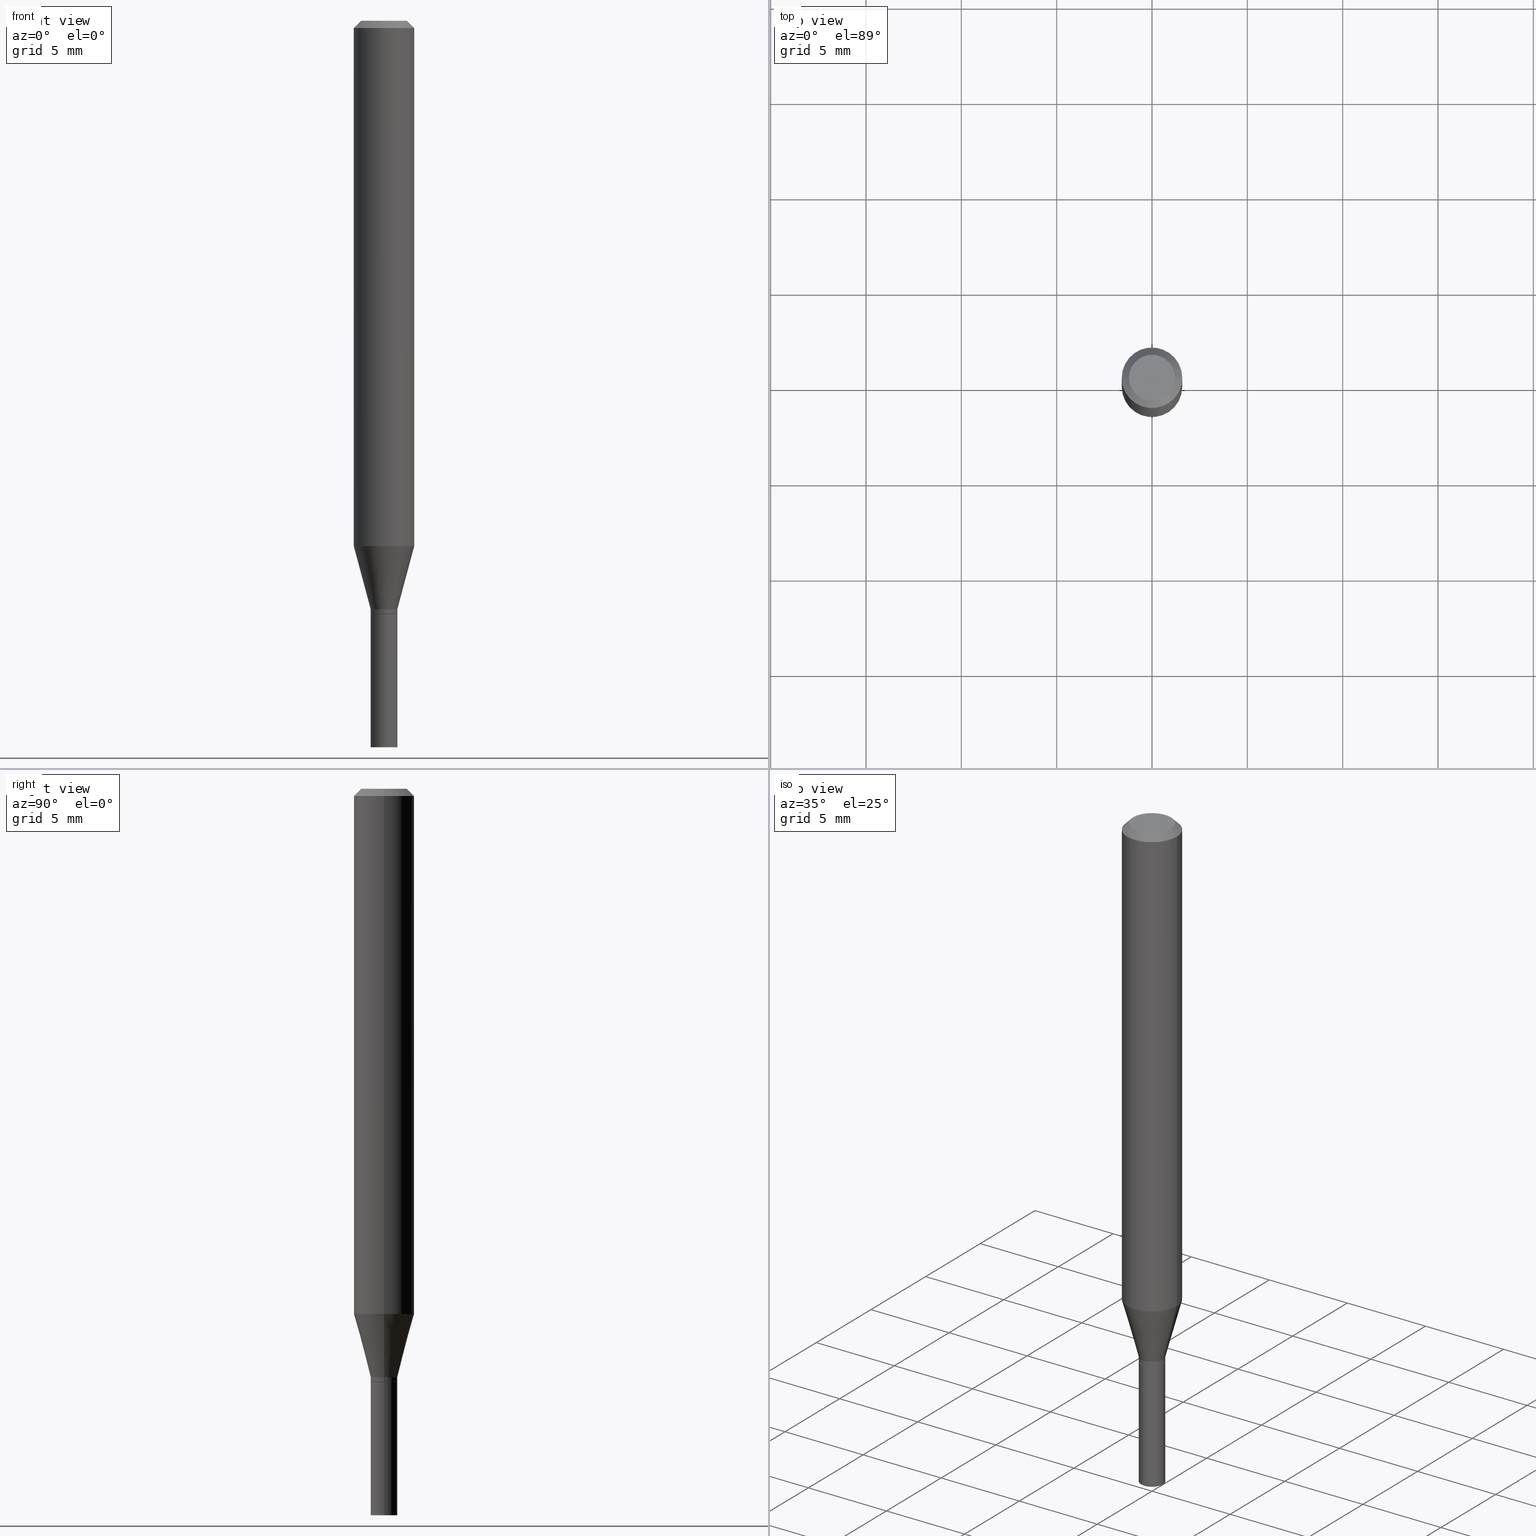
[diagram: canonical four-view strip — front | top / right | iso, engineering-drawing reading convention]
A machine part, canonical four-view strip (front | top / right | iso — engineering-drawing reading convention). The complete STEP part file that produces these views, byte-faithful:
ISO-10303-21;
HEADER;
FILE_DESCRIPTION (( 'STEP AP203' ),
    '1' );
FILE_NAME ('04193.STEP',
    '2024-03-14T17:15:49',
    ( '' ),
    ( '' ),
    'SwSTEP 2.0',
    'SolidWorks 2023',
    '' );
FILE_SCHEMA (( 'CONFIG_CONTROL_DESIGN' ));
ENDSEC;

DATA;
#1 = DIRECTION ( 'NONE',  ( -2.445468806185136597E-29, 3.491481338843145583E-15, 1.000000000000000000 ) ) ;
#2 = EDGE_CURVE ( 'NONE', #49, #306, #93, .T. ) ;
#3 = CARTESIAN_POINT ( 'NONE',  ( 2.995699287576792443E-29, -4.277064640082853349E-15, -1.225000000000000089 ) ) ;
#4 = CARTESIAN_POINT ( 'NONE',  ( 3.668203209277704895E-29, -5.237222008264718177E-15, -1.500000000000000222 ) ) ;
#5 = COORDINATED_UNIVERSAL_TIME_OFFSET ( 5, 0, .BEHIND. ) ;
#6 = AXIS2_PLACEMENT_3D ( 'NONE', #355, #25, #28 ) ;
#7 = LINE ( 'NONE', #83, #188 ) ;
#8 = AXIS2_PLACEMENT_3D ( 'NONE', #44, #403, #392 ) ;
#9 = VERTEX_POINT ( 'NONE', #379 ) ;
#10 = DATE_TIME_ROLE ( 'classification_date' ) ;
#11 = ORIENTED_EDGE ( 'NONE', *, *, #311, .T. ) ;
#12 = DIRECTION ( 'NONE',  ( -2.445468806185136877E-29, 3.491481338843145188E-15, 1.000000000000000000 ) ) ;
#13 = ORIENTED_EDGE ( 'NONE', *, *, #53, .T. ) ;
#14 = PERSON_AND_ORGANIZATION_ROLE ( 'creator' ) ;
#15 = ORIENTED_EDGE ( 'NONE', *, *, #454, .T. ) ;
#16 = EDGE_LOOP ( 'NONE', ( #395, #66, #258, #449 ) ) ;
#17 = CARTESIAN_POINT ( 'NONE',  ( -0.02750000000000006259, -4.079919647079403726E-15, -1.224499999999999922 ) ) ;
#18 = ADVANCED_FACE ( 'NONE', ( #60 ), #370, .T. ) ;
#19 = SECURITY_CLASSIFICATION_LEVEL ( 'unclassified' ) ;
#20 = MANIFOLD_SOLID_BREP ( 'Body-Move/Copy2[2]', #144 ) ;
#21 = CIRCLE ( 'NONE', #138, 0.02750000000000000014 ) ;
#22 = ORIENTED_EDGE ( 'NONE', *, *, #272, .F. ) ;
#23 = FACE_OUTER_BOUND ( 'NONE', #91, .T. ) ;
#24 = CC_DESIGN_PERSON_AND_ORGANIZATION_ASSIGNMENT ( #437, #299, ( #344 ) ) ;
#25 = DIRECTION ( 'NONE',  ( -2.445468806185136597E-29, 3.491481338843145583E-15, 1.000000000000000000 ) ) ;
#26 = EDGE_CURVE ( 'NONE', #89, #409, #230, .T. ) ;
#27 = EDGE_CURVE ( 'NONE', #332, #447, #21, .T. ) ;
#28 = DIRECTION ( 'NONE',  ( 1.000000000000000000, -6.982962677686267499E-15, 4.852736867747366768E-29 ) ) ;
#29 = DIRECTION ( 'NONE',  ( -2.445468806185136597E-29, 3.491481338843145583E-15, 1.000000000000000000 ) ) ;
#30 = CLOSED_SHELL ( 'NONE', ( #243, #241, #166, #348 ) ) ;
#31 = DIRECTION ( 'NONE',  ( 1.000000000000000000, -6.982962677686262766E-15, 0.000000000000000000 ) ) ;
#32 = EDGE_LOOP ( 'NONE', ( #375, #414, #125, #349 ) ) ;
#33 = DIRECTION ( 'NONE',  ( 1.000000000000000000, -6.982962677686262766E-15, 0.000000000000000000 ) ) ;
#34 = ORIENTED_EDGE ( 'NONE', *, *, #232, .F. ) ;
#35 = APPROVAL ( #347, 'UNSPECIFIED' ) ;
#36 = VECTOR ( 'NONE', #145, 39.37007874015748143 ) ;
#37 = CARTESIAN_POINT ( 'NONE',  ( -0.02750000000000000014, -4.561744071839757644E-15, -1.225000000000000089 ) ) ;
#38 = CARTESIAN_POINT ( 'NONE',  ( 2.994476553173699642E-29, -4.275318899413431845E-15, -1.224499999999999922 ) ) ;
#39 = VERTEX_POINT ( 'NONE', #387 ) ;
#40 = AXIS2_PLACEMENT_3D ( 'NONE', #279, #412, #59 ) ;
#41 = ORIENTED_EDGE ( 'NONE', *, *, #121, .T. ) ;
#42 =( GEOMETRIC_REPRESENTATION_CONTEXT ( 3 ) GLOBAL_UNCERTAINTY_ASSIGNED_CONTEXT ( ( #457 ) ) GLOBAL_UNIT_ASSIGNED_CONTEXT ( ( #365, #325, #189 ) ) REPRESENTATION_CONTEXT ( 'NONE', 'WORKASPACE' ) );
#43 = DIRECTION ( 'NONE',  ( -2.445468806185136597E-29, 3.491481338843145583E-15, 1.000000000000000000 ) ) ;
#44 = CARTESIAN_POINT ( 'NONE',  ( 0.000000000000000000, 0.000000000000000000, 0.000000000000000000 ) ) ;
#45 = CARTESIAN_POINT ( 'NONE',  ( 3.576687321579069994E-29, -5.368277968210015545E-15, -1.500000000000000222 ) ) ;
#46 = DATE_AND_TIME ( #231, #446 ) ;
#47 = CIRCLE ( 'NONE', #76, 0.02750000000000006259 ) ;
#48 = AXIS2_PLACEMENT_3D ( 'NONE', #38, #29, #357 ) ;
#49 = VERTEX_POINT ( 'NONE', #182 ) ;
#50 = APPROVAL ( #398, 'UNSPECIFIED' ) ;
#51 = DATE_AND_TIME ( #233, #102 ) ;
#52 = EDGE_CURVE ( 'NONE', #239, #113, #242, .T. ) ;
#53 = EDGE_CURVE ( 'NONE', #447, #332, #310, .T. ) ;
#54 = ORIENTED_EDGE ( 'NONE', *, *, #27, .F. ) ;
#55 = DIRECTION ( 'NONE',  ( 1.000000000000000000, -6.982962677686265922E-15, 4.876176775795935793E-29 ) ) ;
#56 = ORIENTED_EDGE ( 'NONE', *, *, #57, .T. ) ;
#57 = EDGE_CURVE ( 'NONE', #309, #97, #224, .T. ) ;
#58 = ORIENTED_EDGE ( 'NONE', *, *, #121, .F. ) ;
#59 = DIRECTION ( 'NONE',  ( -1.000000000000000000, 6.982962677686266711E-15, 0.000000000000000000 ) ) ;
#60 = FACE_OUTER_BOUND ( 'NONE', #220, .T. ) ;
#61 = EDGE_CURVE ( 'NONE', #171, #340, #219, .T. ) ;
#62 = CONICAL_SURFACE ( 'NONE', #67, 0.06250000000000000000, 0.7853981633974636001 ) ;
#63 = PLANE ( 'NONE',  #193 ) ;
#64 = CARTESIAN_POINT ( 'NONE',  ( -0.06250000000000000000, -1.475140062909251703E-15, -0.01499999999999999944 ) ) ;
#65 = CARTESIAN_POINT ( 'NONE',  ( 2.995699287576792443E-29, -4.277064640082853349E-15, -1.225000000000000089 ) ) ;
#66 = ORIENTED_EDGE ( 'NONE', *, *, #232, .T. ) ;
#67 = AXIS2_PLACEMENT_3D ( 'NONE', #154, #333, #293 ) ;
#68 = CARTESIAN_POINT ( 'NONE',  ( 0.06250000000000000000, -4.222521492791372833E-15, -1.084378221735089909 ) ) ;
#69 = APPROVAL ( #128, 'UNSPECIFIED' ) ;
#70 = DIRECTION ( 'NONE',  ( 1.000000000000000000, -6.982962677686280121E-15, 0.000000000000000000 ) ) ;
#71 = CIRCLE ( 'NONE', #319, 0.06250000000000000000 ) ;
#72 = DIRECTION ( 'NONE',  ( 1.000000000000000000, -6.982962677686262766E-15, 0.000000000000000000 ) ) ;
#73 = PERSON_AND_ORGANIZATION_ROLE ( 'creator' ) ;
#74 = VERTEX_POINT ( 'NONE', #64 ) ;
#75 = AXIS2_PLACEMENT_3D ( 'NONE', #297, #148, #111 ) ;
#76 = AXIS2_PLACEMENT_3D ( 'NONE', #435, #77, #157 ) ;
#77 = DIRECTION ( 'NONE',  ( -2.445468806185136597E-29, 3.491481338843145583E-15, 1.000000000000000000 ) ) ;
#78 = CC_DESIGN_DATE_AND_TIME_ASSIGNMENT ( #413, #10, ( #421 ) ) ;
#79 = CARTESIAN_POINT ( 'NONE',  ( 0.000000000000000000, 0.000000000000000000, 0.000000000000000000 ) ) ;
#80 = MECHANICAL_CONTEXT ( 'NONE', #213, 'mechanical' ) ;
#81 = FACE_OUTER_BOUND ( 'NONE', #130, .T. ) ;
#82 = VECTOR ( 'NONE', #315, 39.37007874015748143 ) ;
#83 = CARTESIAN_POINT ( 'NONE',  ( -0.02750000000000000014, 1.953992523340275521E-16, -1.352707149820099181E-30 ) ) ;
#84 = CIRCLE ( 'NONE', #445, 0.02699999999999999969 ) ;
#85 = CC_DESIGN_APPROVAL ( #35, ( #344 ) ) ;
#86 = ORIENTED_EDGE ( 'NONE', *, *, #53, .F. ) ;
#87 = CARTESIAN_POINT ( 'NONE',  ( 2.971244599514940898E-29, -4.242149826694421699E-15, -1.215000000000000080 ) ) ;
#88 = APPROVAL_DATE_TIME ( #201, #35 ) ;
#89 = VERTEX_POINT ( 'NONE', #37 ) ;
#90 = PERSON_AND_ORGANIZATION_ROLE ( 'classification_officer' ) ;
#91 = EDGE_LOOP ( 'NONE', ( #237, #155, #11, #162 ) ) ;
#92 = AXIS2_PLACEMENT_3D ( 'NONE', #388, #137, #289 ) ;
#93 = LINE ( 'NONE', #94, #425 ) ;
#94 = CARTESIAN_POINT ( 'NONE',  ( 0.06250000000000000000, -4.811533449433679005E-16, -0.01499999999999999944 ) ) ;
#95 = AXIS2_PLACEMENT_3D ( 'NONE', #140, #185, #221 ) ;
#96 = DIRECTION ( 'NONE',  ( -2.445468806185136597E-29, 3.491481338843145583E-15, 1.000000000000000000 ) ) ;
#97 = VERTEX_POINT ( 'NONE', #108 ) ;
#98 = ADVANCED_BREP_SHAPE_REPRESENTATION ( '04193', ( #179, #20, #75 ), #42 ) ;
#99 = DIRECTION ( 'NONE',  ( -2.445468806185136597E-29, 3.491481338843145583E-15, 1.000000000000000000 ) ) ;
#100 = DIRECTION ( 'NONE',  ( 1.000000000000000000, -6.982962677686279332E-15, 0.000000000000000000 ) ) ;
#101 = ORIENTED_EDGE ( 'NONE', *, *, #336, .F. ) ;
#102 = LOCAL_TIME ( 13, 15, 49.00000000000000000, #371 ) ;
#103 = CYLINDRICAL_SURFACE ( 'NONE', #282, 0.02750000000000006606 ) ;
#104 = ADVANCED_FACE ( 'NONE', ( #385 ), #107, .T. ) ;
#105 = CIRCLE ( 'NONE', #314, 0.06250000000000000000 ) ;
#106 = DIRECTION ( 'NONE',  ( -1.000000000000000000, 6.982962677686265922E-15, -4.876176775795935793E-29 ) ) ;
#107 = CONICAL_SURFACE ( 'NONE', #335, 0.02699999999999999969, 0.7853981633974739252 ) ;
#108 = CARTESIAN_POINT ( 'NONE',  ( -0.02750000000000006953, -3.694373844973156064E-15, -1.215000000000000080 ) ) ;
#109 = FACE_OUTER_BOUND ( 'NONE', #252, .T. ) ;
#110 = PLANE ( 'NONE',  #417 ) ;
#111 = DIRECTION ( 'NONE',  ( 1.000000000000000000, 0.000000000000000000, 0.000000000000000000 ) ) ;
#112 = CARTESIAN_POINT ( 'NONE',  ( -0.02750000000000006606, 1.953992523340280205E-16, -1.352707149820102334E-30 ) ) ;
#113 = VERTEX_POINT ( 'NONE', #68 ) ;
#114 = PERSON_AND_ORGANIZATION ( #373, #207 ) ;
#115 = DIRECTION ( 'NONE',  ( 1.000000000000000000, -6.982962677686279332E-15, 0.000000000000000000 ) ) ;
#116 = CARTESIAN_POINT ( 'NONE',  ( -0.06250000000000000000, -3.341997115585918942E-15, -1.084378221735089909 ) ) ;
#117 = APPLICATION_CONTEXT ( 'configuration controlled 3d designs of mechanical parts and assemblies' ) ;
#118 = CARTESIAN_POINT ( 'NONE',  ( 0.000000000000000000, 0.000000000000000000, 0.000000000000000000 ) ) ;
#119 = EDGE_CURVE ( 'NONE', #332, #409, #217, .T. ) ;
#120 = PERSON_AND_ORGANIZATION ( #373, #207 ) ;
#121 = EDGE_CURVE ( 'NONE', #306, #74, #274, .T. ) ;
#122 = CYLINDRICAL_SURFACE ( 'NONE', #8, 0.06250000000000000000 ) ;
#123 = PERSON_AND_ORGANIZATION ( #373, #207 ) ;
#124 = CIRCLE ( 'NONE', #380, 0.04749999999999999362 ) ;
#125 = ORIENTED_EDGE ( 'NONE', *, *, #454, .F. ) ;
#126 = ORIENTED_EDGE ( 'NONE', *, *, #26, .F. ) ;
#127 = DIRECTION ( 'NONE',  ( 0.2588190451025214611, 1.565188264969620982E-15, 0.9659258262890679791 ) ) ;
#128 = APPROVAL_STATUS ( 'not_yet_approved' ) ;
#129 = EDGE_CURVE ( 'NONE', #309, #340, #167, .T. ) ;
#130 = EDGE_LOOP ( 'NONE', ( #256, #337, #41, #328 ) ) ;
#131 = CARTESIAN_POINT ( 'NONE',  ( 0.02750000000000006953, -4.434181300330794981E-15, -1.215000000000000080 ) ) ;
#132 = ORIENTED_EDGE ( 'NONE', *, *, #158, .F. ) ;
#133 = CC_DESIGN_DATE_AND_TIME_ASSIGNMENT ( #394, #330, ( #270 ) ) ;
#134 = ORIENTED_EDGE ( 'NONE', *, *, #287, .T. ) ;
#135 = DIRECTION ( 'NONE',  ( -0.7071067811865583419, 2.468850131082370262E-15, -0.7071067811865366926 ) ) ;
#136 = SHAPE_DEFINITION_REPRESENTATION ( #415, #98 ) ;
#137 = DIRECTION ( 'NONE',  ( -2.445468806185136597E-29, 3.491481338843145583E-15, 1.000000000000000000 ) ) ;
#138 = AXIS2_PLACEMENT_3D ( 'NONE', #4, #461, #149 ) ;
#139 = DIRECTION ( 'NONE',  ( 1.000000000000000000, -6.982962677686266711E-15, 4.876176775795935793E-29 ) ) ;
#140 = CARTESIAN_POINT ( 'NONE',  ( 3.668203209277704895E-29, -5.237222008264718177E-15, -1.500000000000000222 ) ) ;
#141 = ADVANCED_FACE ( 'NONE', ( #181 ), #103, .T. ) ;
#142 = ADVANCED_FACE ( 'NONE', ( #283 ), #396, .T. ) ;
#143 = CARTESIAN_POINT ( 'NONE',  ( 0.02750000000000000014, -1.920314736363723444E-16, 1.340948613343882413E-30 ) ) ;
#144 = CLOSED_SHELL ( 'NONE', ( #141, #142, #209, #458, #18, #281, #183, #317, #176, #275, #104, #360 ) ) ;
#145 = DIRECTION ( 'NONE',  ( -0.7071067811865656694, 7.493145998870420424E-15, 0.7071067811865294761 ) ) ;
#146 = PRODUCT_RELATED_PRODUCT_CATEGORY ( 'detail', '', ( #250 ) ) ;
#147 = DIRECTION ( 'NONE',  ( -2.445468806185136597E-29, 3.491481338843145583E-15, 1.000000000000000000 ) ) ;
#148 = DIRECTION ( 'NONE',  ( 0.000000000000000000, 0.000000000000000000, 1.000000000000000000 ) ) ;
#149 = DIRECTION ( 'NONE',  ( 1.000000000000000000, -6.982962677686279332E-15, 0.000000000000000000 ) ) ;
#150 = DIRECTION ( 'NONE',  ( -2.445468806185136877E-29, 3.491481338843145188E-15, 1.000000000000000000 ) ) ;
#151 = VECTOR ( 'NONE', #135, 39.37007874015748143 ) ;
#152 = CC_DESIGN_APPROVAL ( #50, ( #270 ) ) ;
#153 = VECTOR ( 'NONE', #127, 39.37007874015748143 ) ;
#154 = CARTESIAN_POINT ( 'NONE',  ( 3.668203209277705088E-31, -5.237222008264718399E-17, -0.01499999999999999944 ) ) ;
#155 = ORIENTED_EDGE ( 'NONE', *, *, #386, .F. ) ;
#156 = FACE_OUTER_BOUND ( 'NONE', #345, .T. ) ;
#157 = DIRECTION ( 'NONE',  ( 1.000000000000000000, -6.982962677686263555E-15, 0.000000000000000000 ) ) ;
#158 = EDGE_CURVE ( 'NONE', #113, #239, #105, .T. ) ;
#159 = APPLICATION_PROTOCOL_DEFINITION ( 'international standard', 'config_control_design', 1994, #117 ) ;
#160 = APPROVAL_PERSON_ORGANIZATION ( #123, #69, #453 ) ;
#161 = CONICAL_SURFACE ( 'NONE', #292, 0.02750000000000006953, 0.2617993877991501850 ) ;
#162 = ORIENTED_EDGE ( 'NONE', *, *, #433, .T. ) ;
#163 = CARTESIAN_POINT ( 'NONE',  ( 2.995699287576792443E-29, -4.277064640082853349E-15, -1.225000000000000089 ) ) ;
#164 = EDGE_LOOP ( 'NONE', ( #271, #208 ) ) ;
#165 = DIRECTION ( 'NONE',  ( -2.445468806185136877E-29, 3.491481338843145188E-15, 1.000000000000000000 ) ) ;
#166 = ADVANCED_FACE ( 'NONE', ( #284 ), #422, .T. ) ;
#167 = CIRCLE ( 'NONE', #48, 0.02750000000000006259 ) ;
#168 = EDGE_CURVE ( 'NONE', #409, #89, #359, .T. ) ;
#169 = ORIENTED_EDGE ( 'NONE', *, *, #339, .F. ) ;
#170 = CARTESIAN_POINT ( 'NONE',  ( 2.995699287576792443E-29, -4.277064640082853349E-15, -1.225000000000000089 ) ) ;
#171 = VERTEX_POINT ( 'NONE', #290 ) ;
#172 = ORIENTED_EDGE ( 'NONE', *, *, #272, .T. ) ;
#173 = LINE ( 'NONE', #452, #151 ) ;
#174 = PERSON_AND_ORGANIZATION ( #373, #207 ) ;
#175 = EDGE_LOOP ( 'NONE', ( #302, #343, #58, #22 ) ) ;
#176 = ADVANCED_FACE ( 'NONE', ( #427 ), #110, .F. ) ;
#177 = CARTESIAN_POINT ( 'NONE',  ( 2.971244599514940898E-29, -4.242149826694421699E-15, -1.215000000000000080 ) ) ;
#178 = CARTESIAN_POINT ( 'NONE',  ( 0.02750000000000000014, -4.469096113719225841E-15, -1.225000000000000089 ) ) ;
#179 = MANIFOLD_SOLID_BREP ( 'Body-Move/Copy2[1]', #30 ) ;
#180 = LOCAL_TIME ( 13, 15, 49.00000000000000000, #5 ) ;
#181 = FACE_OUTER_BOUND ( 'NONE', #255, .T. ) ;
#182 = CARTESIAN_POINT ( 'NONE',  ( 0.04749999999999999362, -4.035134999187586019E-16, -4.564927558880262878E-16 ) ) ;
#183 = ADVANCED_FACE ( 'NONE', ( #276 ), #248, .T. ) ;
#184 = CARTESIAN_POINT ( 'NONE',  ( 0.02750000000000006259, -4.467350373049805126E-15, -1.224499999999999922 ) ) ;
#185 = DIRECTION ( 'NONE',  ( -2.445468806185136597E-29, 3.491481338843145583E-15, 1.000000000000000000 ) ) ;
#186 = ORIENTED_EDGE ( 'NONE', *, *, #129, .F. ) ;
#187 = DIRECTION ( 'NONE',  ( -2.445468806185136597E-29, 3.491481338843145583E-15, 1.000000000000000000 ) ) ;
#188 = VECTOR ( 'NONE', #12, 39.37007874015748143 ) ;
#189 =( NAMED_UNIT ( * ) SI_UNIT ( $, .STERADIAN. ) SOLID_ANGLE_UNIT ( ) );
#190 = DIRECTION ( 'NONE',  ( -2.445468806185136597E-29, 3.491481338843145583E-15, 1.000000000000000000 ) ) ;
#191 = APPROVAL_DATE_TIME ( #46, #50 ) ;
#192 = PERSON_AND_ORGANIZATION_ROLE ( 'design_owner' ) ;
#193 = AXIS2_PLACEMENT_3D ( 'NONE', #416, #466, #106 ) ;
#194 = LOCAL_TIME ( 13, 15, 49.00000000000000000, #206 ) ;
#195 = ORIENTED_EDGE ( 'NONE', *, *, #260, .T. ) ;
#196 = DIRECTION ( 'NONE',  ( 1.000000000000000000, -6.982962677686267499E-15, 4.852736867747366768E-29 ) ) ;
#197 = APPROVAL_ROLE ( '' ) ;
#198 = LINE ( 'NONE', #298, #381 ) ;
#199 = AXIS2_PLACEMENT_3D ( 'NONE', #118, #99, #200 ) ;
#200 = DIRECTION ( 'NONE',  ( 1.000000000000000000, -6.982962677686266711E-15, 4.876176775795935793E-29 ) ) ;
#201 = DATE_AND_TIME ( #338, #194 ) ;
#202 = CC_DESIGN_PERSON_AND_ORGANIZATION_ASSIGNMENT ( #114, #192, ( #250 ) ) ;
#203 = CALENDAR_DATE ( 2024, 14, 3 ) ;
#204 = ORIENTED_EDGE ( 'NONE', *, *, #61, .T. ) ;
#205 = LINE ( 'NONE', #131, #153 ) ;
#206 = COORDINATED_UNIVERSAL_TIME_OFFSET ( 5, 0, .BEHIND. ) ;
#207 = ORGANIZATION ( 'UNSPECIFIED', 'UNSPECIFIED', '' ) ;
#208 = ORIENTED_EDGE ( 'NONE', *, *, #215, .F. ) ;
#209 = ADVANCED_FACE ( 'NONE', ( #81 ), #62, .T. ) ;
#210 = VERTEX_POINT ( 'NONE', #431 ) ;
#211 = CARTESIAN_POINT ( 'NONE',  ( 0.02750000000000000014, -5.429253481901091458E-15, -1.500000000000000222 ) ) ;
#212 = CARTESIAN_POINT ( 'NONE',  ( 2.971244599514940898E-29, -4.242149826694421699E-15, -1.215000000000000080 ) ) ;
#213 = APPLICATION_CONTEXT ( 'configuration controlled 3d designs of mechanical parts and assemblies' ) ;
#214 = AXIS2_PLACEMENT_3D ( 'NONE', #251, #363, #366 ) ;
#215 = EDGE_CURVE ( 'NONE', #39, #171, #324, .T. ) ;
#216 = CIRCLE ( 'NONE', #263, 0.02750000000000006953 ) ;
#217 = LINE ( 'NONE', #143, #432 ) ;
#218 = EDGE_CURVE ( 'NONE', #239, #74, #397, .T. ) ;
#219 = LINE ( 'NONE', #383, #351 ) ;
#220 = EDGE_LOOP ( 'NONE', ( #268, #451, #132, #321 ) ) ;
#221 = DIRECTION ( 'NONE',  ( 1.000000000000000000, -6.982962677686279332E-15, 0.000000000000000000 ) ) ;
#222 = CC_DESIGN_PERSON_AND_ORGANIZATION_ASSIGNMENT ( #120, #73, ( #270 ) ) ;
#223 = ORIENTED_EDGE ( 'NONE', *, *, #307, .F. ) ;
#224 = LINE ( 'NONE', #112, #82 ) ;
#225 = ORIENTED_EDGE ( 'NONE', *, *, #386, .T. ) ;
#226 = LENGTH_MEASURE_WITH_UNIT ( LENGTH_MEASURE( 0.02539999999999999897 ), #331 );
#227 = DIRECTION ( 'NONE',  ( 2.438088387897960049E-29, -3.491481338843145188E-15, -1.000000000000000000 ) ) ;
#228 = EDGE_CURVE ( 'NONE', #49, #210, #124, .T. ) ;
#229 = DIRECTION ( 'NONE',  ( -2.445468806185136597E-29, 3.491481338843145583E-15, 1.000000000000000000 ) ) ;
#230 = CIRCLE ( 'NONE', #257, 0.02750000000000000014 ) ;
#231 = CALENDAR_DATE ( 2024, 14, 3 ) ;
#232 = EDGE_CURVE ( 'NONE', #447, #89, #7, .T. ) ;
#233 = CALENDAR_DATE ( 2024, 14, 3 ) ;
#234 = PLANE ( 'NONE',  #455 ) ;
#235 = ORIENTED_EDGE ( 'NONE', *, *, #57, .F. ) ;
#236 = DIRECTION ( 'NONE',  ( 1.000000000000000000, -6.982962677686280121E-15, 0.000000000000000000 ) ) ;
#237 = ORIENTED_EDGE ( 'NONE', *, *, #2, .F. ) ;
#238 = ORIENTED_EDGE ( 'NONE', *, *, #228, .T. ) ;
#239 = VERTEX_POINT ( 'NONE', #116 ) ;
#240 = DIRECTION ( 'NONE',  ( 0.7071067811865583419, -7.319954787623292333E-15, -0.7071067811865366926 ) ) ;
#241 = ADVANCED_FACE ( 'NONE', ( #156 ), #265, .F. ) ;
#242 = CIRCLE ( 'NONE', #438, 0.06250000000000000000 ) ;
#243 = ADVANCED_FACE ( 'NONE', ( #334 ), #262, .T. ) ;
#244 = DIRECTION ( 'NONE',  ( 1.000000000000000000, -6.982962677686266711E-15, 0.000000000000000000 ) ) ;
#245 = CIRCLE ( 'NONE', #354, 0.02750000000000006953 ) ;
#246 = DIRECTION ( 'NONE',  ( -2.445468806185136597E-29, 3.491481338843145583E-15, 1.000000000000000000 ) ) ;
#247 = ORIENTED_EDGE ( 'NONE', *, *, #372, .F. ) ;
#248 = CYLINDRICAL_SURFACE ( 'NONE', #199, 0.06250000000000000000 ) ;
#249 = CYLINDRICAL_SURFACE ( 'NONE', #92, 0.02750000000000006606 ) ;
#250 = PRODUCT ( '04193', '04193', '', ( #80 ) ) ;
#251 = CARTESIAN_POINT ( 'NONE',  ( 0.000000000000000000, 0.000000000000000000, 0.000000000000000000 ) ) ;
#252 = EDGE_LOOP ( 'NONE', ( #235, #411, #195, #101 ) ) ;
#253 = LINE ( 'NONE', #390, #420 ) ;
#254 = CARTESIAN_POINT ( 'NONE',  ( 3.316907271900976096E-16, 0.04749999999999999362, -3.940917415390638222E-16 ) ) ;
#255 = EDGE_LOOP ( 'NONE', ( #15, #56, #223, #273 ) ) ;
#256 = ORIENTED_EDGE ( 'NONE', *, *, #228, .F. ) ;
#257 = AXIS2_PLACEMENT_3D ( 'NONE', #326, #246, #31 ) ;
#258 = ORIENTED_EDGE ( 'NONE', *, *, #168, .F. ) ;
#259 = DIRECTION ( 'NONE',  ( -2.445468806185136597E-29, 3.491481338843145583E-15, 1.000000000000000000 ) ) ;
#260 = EDGE_CURVE ( 'NONE', #340, #9, #198, .T. ) ;
#261 = FACE_OUTER_BOUND ( 'NONE', #175, .T. ) ;
#262 = CYLINDRICAL_SURFACE ( 'NONE', #301, 0.02750000000000000014 ) ;
#263 = AXIS2_PLACEMENT_3D ( 'NONE', #423, #459, #322 ) ;
#264 = APPLICATION_PROTOCOL_DEFINITION ( 'international standard', 'config_control_design', 1994, #213 ) ;
#265 = PLANE ( 'NONE',  #288 ) ;
#266 = PERSON_AND_ORGANIZATION ( #373, #207 ) ;
#267 = PERSON_AND_ORGANIZATION ( #373, #207 ) ;
#268 = ORIENTED_EDGE ( 'NONE', *, *, #307, .T. ) ;
#269 = CARTESIAN_POINT ( 'NONE',  ( 2.995699287576792443E-29, -4.277064640082853349E-15, -1.225000000000000089 ) ) ;
#270 = PRODUCT_DEFINITION ( 'UNKNOWN', '', #344, #376 ) ;
#271 = ORIENTED_EDGE ( 'NONE', *, *, #305, .F. ) ;
#272 = EDGE_CURVE ( 'NONE', #113, #306, #327, .T. ) ;
#273 = ORIENTED_EDGE ( 'NONE', *, *, #260, .F. ) ;
#274 = CIRCLE ( 'NONE', #300, 0.06250000000000000000 ) ;
#275 = ADVANCED_FACE ( 'NONE', ( #440 ), #234, .F. ) ;
#276 = FACE_OUTER_BOUND ( 'NONE', #406, .T. ) ;
#277 = VECTOR ( 'NONE', #165, 39.37007874015748143 ) ;
#278 = ORIENTED_EDGE ( 'NONE', *, *, #218, .F. ) ;
#279 = CARTESIAN_POINT ( 'NONE',  ( 3.668203209277705088E-31, -5.237222008264718399E-17, -0.01499999999999999944 ) ) ;
#280 = ORIENTED_EDGE ( 'NONE', *, *, #52, .T. ) ;
#281 = ADVANCED_FACE ( 'NONE', ( #443 ), #161, .T. ) ;
#282 = AXIS2_PLACEMENT_3D ( 'NONE', #391, #187, #139 ) ;
#283 = FACE_OUTER_BOUND ( 'NONE', #32, .T. ) ;
#284 = FACE_OUTER_BOUND ( 'NONE', #439, .T. ) ;
#285 = LINE ( 'NONE', #426, #36 ) ;
#286 = DIRECTION ( 'NONE',  ( -2.445468806185136597E-29, 3.491481338843145583E-15, 1.000000000000000000 ) ) ;
#287 = EDGE_CURVE ( 'NONE', #9, #113, #205, .T. ) ;
#288 = AXIS2_PLACEMENT_3D ( 'NONE', #45, #296, #404 ) ;
#289 = DIRECTION ( 'NONE',  ( 1.000000000000000000, -6.982962677686266711E-15, 4.876176775795935793E-29 ) ) ;
#290 = CARTESIAN_POINT ( 'NONE',  ( 0.02699999999999999969, -4.465604632380382834E-15, -1.225000000000000089 ) ) ;
#291 = CARTESIAN_POINT ( 'NONE',  ( 2.651813115359671942E-29, -3.786086325435981164E-15, -1.084378221735089909 ) ) ;
#292 = AXIS2_PLACEMENT_3D ( 'NONE', #177, #456, #378 ) ;
#293 = DIRECTION ( 'NONE',  ( -1.000000000000000000, 6.982962677686266711E-15, 0.000000000000000000 ) ) ;
#294 = AXIS2_PLACEMENT_3D ( 'NONE', #424, #462, #100 ) ;
#295 = ORIENTED_EDGE ( 'NONE', *, *, #336, .T. ) ;
#296 = DIRECTION ( 'NONE',  ( -2.438088387897960049E-29, 3.491481338843145188E-15, 1.000000000000000000 ) ) ;
#297 = CARTESIAN_POINT ( 'NONE',  ( 0.000000000000000000, 0.000000000000000000, 0.000000000000000000 ) ) ;
#298 = CARTESIAN_POINT ( 'NONE',  ( 0.02750000000000006606, -1.920314736363727881E-16, 1.340948613343885566E-30 ) ) ;
#299 = PERSON_AND_ORGANIZATION_ROLE ( 'design_supplier' ) ;
#300 = AXIS2_PLACEMENT_3D ( 'NONE', #356, #389, #361 ) ;
#301 = AXIS2_PLACEMENT_3D ( 'NONE', #79, #229, #369 ) ;
#302 = ORIENTED_EDGE ( 'NONE', *, *, #158, .T. ) ;
#303 = DIRECTION ( 'NONE',  ( -2.438088387897960049E-29, 3.491481338843145188E-15, 1.000000000000000000 ) ) ;
#304 = ORIENTED_EDGE ( 'NONE', *, *, #52, .F. ) ;
#305 = EDGE_CURVE ( 'NONE', #171, #39, #84, .T. ) ;
#306 = VERTEX_POINT ( 'NONE', #448 ) ;
#307 = EDGE_CURVE ( 'NONE', #9, #97, #245, .T. ) ;
#308 = ORIENTED_EDGE ( 'NONE', *, *, #433, .F. ) ;
#309 = VERTEX_POINT ( 'NONE', #17 ) ;
#310 = CIRCLE ( 'NONE', #95, 0.02750000000000000014 ) ;
#311 = EDGE_CURVE ( 'NONE', #210, #74, #173, .T. ) ;
#312 = CARTESIAN_POINT ( 'NONE',  ( 3.668203209277705088E-31, -5.237222008264718399E-17, -0.01499999999999999944 ) ) ;
#313 = DIRECTION ( 'NONE',  ( -2.445468806185136877E-29, 3.491481338843145188E-15, 1.000000000000000000 ) ) ;
#314 = AXIS2_PLACEMENT_3D ( 'NONE', #323, #1, #33 ) ;
#315 = DIRECTION ( 'NONE',  ( -2.445468806185136877E-29, 3.491481338843145188E-15, 1.000000000000000000 ) ) ;
#316 = ORIENTED_EDGE ( 'NONE', *, *, #26, .T. ) ;
#317 = ADVANCED_FACE ( 'NONE', ( #23 ), #329, .T. ) ;
#318 = APPROVAL_PERSON_ORGANIZATION ( #266, #35, #444 ) ;
#319 = AXIS2_PLACEMENT_3D ( 'NONE', #312, #96, #244 ) ;
#320 = DIRECTION ( 'NONE',  ( 0.7071067811865656694, -2.468850131082446387E-15, 0.7071067811865294761 ) ) ;
#321 = ORIENTED_EDGE ( 'NONE', *, *, #287, .F. ) ;
#322 = DIRECTION ( 'NONE',  ( 1.000000000000000000, -6.982962677686280121E-15, 0.000000000000000000 ) ) ;
#323 = CARTESIAN_POINT ( 'NONE',  ( 2.651813115359671942E-29, -3.786086325435981164E-15, -1.084378221735089909 ) ) ;
#324 = CIRCLE ( 'NONE', #408, 0.02699999999999999969 ) ;
#325 =( NAMED_UNIT ( * ) PLANE_ANGLE_UNIT ( ) SI_UNIT ( $, .RADIAN. ) );
#326 = CARTESIAN_POINT ( 'NONE',  ( 2.995699287576792443E-29, -4.277064640082853349E-15, -1.225000000000000089 ) ) ;
#327 = LINE ( 'NONE', #346, #277 ) ;
#328 = ORIENTED_EDGE ( 'NONE', *, *, #311, .F. ) ;
#329 = CONICAL_SURFACE ( 'NONE', #40, 0.06250000000000000000, 0.7853981633974636001 ) ;
#330 = DATE_TIME_ROLE ( 'creation_date' ) ;
#331 =( LENGTH_UNIT ( ) NAMED_UNIT ( * ) SI_UNIT ( $, .METRE. ) );
#332 = VERTEX_POINT ( 'NONE', #211 ) ;
#333 = DIRECTION ( 'NONE',  ( 2.445468806185136597E-29, -3.491481338843145583E-15, -1.000000000000000000 ) ) ;
#334 = FACE_OUTER_BOUND ( 'NONE', #16, .T. ) ;
#335 = AXIS2_PLACEMENT_3D ( 'NONE', #65, #190, #419 ) ;
#336 = EDGE_CURVE ( 'NONE', #97, #9, #216, .T. ) ;
#337 = ORIENTED_EDGE ( 'NONE', *, *, #2, .T. ) ;
#338 = CALENDAR_DATE ( 2024, 14, 3 ) ;
#339 = EDGE_CURVE ( 'NONE', #39, #309, #285, .T. ) ;
#340 = VERTEX_POINT ( 'NONE', #184 ) ;
#341 = DIRECTION ( 'NONE',  ( -2.445468806185136597E-29, 3.491481338843145583E-15, 1.000000000000000000 ) ) ;
#342 = APPROVAL_DATE_TIME ( #51, #69 ) ;
#343 = ORIENTED_EDGE ( 'NONE', *, *, #218, .T. ) ;
#344 = PRODUCT_DEFINITION_FORMATION_WITH_SPECIFIED_SOURCE ( 'ANY', '', #250, .NOT_KNOWN. ) ;
#345 = EDGE_LOOP ( 'NONE', ( #54, #86 ) ) ;
#346 = CARTESIAN_POINT ( 'NONE',  ( 0.06250000000000000000, -4.364351673553916694E-16, 3.047610484872459871E-30 ) ) ;
#347 = APPROVAL_STATUS ( 'not_yet_approved' ) ;
#348 = ADVANCED_FACE ( 'NONE', ( #382 ), #63, .F. ) ;
#349 = ORIENTED_EDGE ( 'NONE', *, *, #61, .F. ) ;
#350 = DIRECTION ( 'NONE',  ( -2.445468806185136597E-29, 3.491481338843145583E-15, 1.000000000000000000 ) ) ;
#351 = VECTOR ( 'NONE', #320, 39.37007874015748143 ) ;
#352 = DIRECTION ( 'NONE',  ( -2.445468806185136597E-29, 3.491481338843145583E-15, 1.000000000000000000 ) ) ;
#353 = DIRECTION ( 'NONE',  ( -0.2588190451025214611, 5.211531920934550253E-15, 0.9659258262890679791 ) ) ;
#354 = AXIS2_PLACEMENT_3D ( 'NONE', #87, #350, #236 ) ;
#355 = CARTESIAN_POINT ( 'NONE',  ( 1.116338794773660675E-44, -1.593835938500131952E-30, -4.564927558880287530E-16 ) ) ;
#356 = CARTESIAN_POINT ( 'NONE',  ( 3.668203209277705088E-31, -5.237222008264718399E-17, -0.01499999999999999944 ) ) ;
#357 = DIRECTION ( 'NONE',  ( 1.000000000000000000, -6.982962677686263555E-15, 0.000000000000000000 ) ) ;
#358 = ORIENTED_EDGE ( 'NONE', *, *, #168, .T. ) ;
#359 = CIRCLE ( 'NONE', #402, 0.02750000000000000014 ) ;
#360 = ADVANCED_FACE ( 'NONE', ( #109 ), #249, .T. ) ;
#361 = DIRECTION ( 'NONE',  ( 1.000000000000000000, -6.982962677686266711E-15, 0.000000000000000000 ) ) ;
#362 = APPROVAL_PERSON_ORGANIZATION ( #267, #50, #197 ) ;
#363 = DIRECTION ( 'NONE',  ( -2.445468806185136597E-29, 3.491481338843145583E-15, 1.000000000000000000 ) ) ;
#364 = DIMENSIONAL_EXPONENTS ( 1.000000000000000000, 0.000000000000000000, 0.000000000000000000, 0.000000000000000000, 0.000000000000000000, 0.000000000000000000, 0.000000000000000000 ) ;
#365 =( CONVERSION_BASED_UNIT ( 'INCH', #226 ) LENGTH_UNIT ( ) NAMED_UNIT ( #364 ) );
#366 = DIRECTION ( 'NONE',  ( 1.000000000000000000, -6.982962677686266711E-15, 4.876176775795935793E-29 ) ) ;
#367 = CARTESIAN_POINT ( 'NONE',  ( 1.116338794773660675E-44, -1.593835938500131952E-30, -4.564927558880287530E-16 ) ) ;
#368 = CC_DESIGN_APPROVAL ( #69, ( #421 ) ) ;
#369 = DIRECTION ( 'NONE',  ( 1.000000000000000000, -6.982962677686266711E-15, 4.876176775795935793E-29 ) ) ;
#370 = CONICAL_SURFACE ( 'NONE', #460, 0.02750000000000006953, 0.2617993877991501850 ) ;
#371 = COORDINATED_UNIVERSAL_TIME_OFFSET ( 5, 0, .BEHIND. ) ;
#372 = EDGE_CURVE ( 'NONE', #97, #239, #253, .T. ) ;
#373 = PERSON ( 'UNSPECIFIED', 'UNSPECIFIED', 'UNSPECIFIED', ('UNSPECIFIED'), ('UNSPECIFIED'), ('UNSPECIFIED') ) ;
#374 = EDGE_LOOP ( 'NONE', ( #169, #463, #204, #186 ) ) ;
#375 = ORIENTED_EDGE ( 'NONE', *, *, #305, .T. ) ;
#376 = DESIGN_CONTEXT ( 'detailed design', #117, 'design' ) ;
#377 = EDGE_LOOP ( 'NONE', ( #358, #316 ) ) ;
#378 = DIRECTION ( 'NONE',  ( 1.000000000000000000, -6.982962677686280121E-15, 0.000000000000000000 ) ) ;
#379 = CARTESIAN_POINT ( 'NONE',  ( 0.02750000000000006953, -4.434181300330794981E-15, -1.215000000000000080 ) ) ;
#380 = AXIS2_PLACEMENT_3D ( 'NONE', #367, #43, #196 ) ;
#381 = VECTOR ( 'NONE', #150, 39.37007874015748143 ) ;
#382 = FACE_OUTER_BOUND ( 'NONE', #377, .T. ) ;
#383 = CARTESIAN_POINT ( 'NONE',  ( 0.02699999999999999969, -4.465604632380382834E-15, -1.225000000000000089 ) ) ;
#384 = CC_DESIGN_SECURITY_CLASSIFICATION ( #421, ( #344 ) ) ;
#385 = FACE_OUTER_BOUND ( 'NONE', #374, .T. ) ;
#386 = EDGE_CURVE ( 'NONE', #210, #49, #465, .T. ) ;
#387 = CARTESIAN_POINT ( 'NONE',  ( -0.02699999999999999969, -4.082568874253514927E-15, -1.225000000000000089 ) ) ;
#388 = CARTESIAN_POINT ( 'NONE',  ( 0.000000000000000000, 0.000000000000000000, 0.000000000000000000 ) ) ;
#389 = DIRECTION ( 'NONE',  ( -2.445468806185136597E-29, 3.491481338843145583E-15, 1.000000000000000000 ) ) ;
#390 = CARTESIAN_POINT ( 'NONE',  ( -0.02750000000000006953, -4.046750574360394369E-15, -1.215000000000000080 ) ) ;
#391 = CARTESIAN_POINT ( 'NONE',  ( 0.000000000000000000, 0.000000000000000000, 0.000000000000000000 ) ) ;
#392 = DIRECTION ( 'NONE',  ( 1.000000000000000000, -6.982962677686266711E-15, 4.876176775795935793E-29 ) ) ;
#393 = DIRECTION ( 'NONE',  ( -1.000000000000000000, 6.982962677686265922E-15, -4.876176775795935793E-29 ) ) ;
#394 = DATE_AND_TIME ( #429, #180 ) ;
#395 = ORIENTED_EDGE ( 'NONE', *, *, #27, .T. ) ;
#396 = CONICAL_SURFACE ( 'NONE', #294, 0.02699999999999999969, 0.7853981633974739252 ) ;
#397 = LINE ( 'NONE', #436, #450 ) ;
#398 = APPROVAL_STATUS ( 'not_yet_approved' ) ;
#399 = CC_DESIGN_PERSON_AND_ORGANIZATION_ASSIGNMENT ( #410, #14, ( #344 ) ) ;
#400 = DIRECTION ( 'NONE',  ( -2.445468806185136877E-29, 3.491481338843145188E-15, 1.000000000000000000 ) ) ;
#401 = COORDINATED_UNIVERSAL_TIME_OFFSET ( 5, 0, .BEHIND. ) ;
#402 = AXIS2_PLACEMENT_3D ( 'NONE', #3, #147, #72 ) ;
#403 = DIRECTION ( 'NONE',  ( -2.445468806185136597E-29, 3.491481338843145583E-15, 1.000000000000000000 ) ) ;
#404 = DIRECTION ( 'NONE',  ( 1.000000000000000000, -6.982962677686265922E-15, 4.876176775795935793E-29 ) ) ;
#405 = CC_DESIGN_PERSON_AND_ORGANIZATION_ASSIGNMENT ( #174, #90, ( #421 ) ) ;
#406 = EDGE_LOOP ( 'NONE', ( #278, #280, #172, #308 ) ) ;
#407 = DIRECTION ( 'NONE',  ( 1.000000000000000000, -6.982962677686279332E-15, 0.000000000000000000 ) ) ;
#408 = AXIS2_PLACEMENT_3D ( 'NONE', #163, #259, #115 ) ;
#409 = VERTEX_POINT ( 'NONE', #178 ) ;
#410 = PERSON_AND_ORGANIZATION ( #373, #207 ) ;
#411 = ORIENTED_EDGE ( 'NONE', *, *, #129, .T. ) ;
#412 = DIRECTION ( 'NONE',  ( 2.445468806185136597E-29, -3.491481338843145583E-15, -1.000000000000000000 ) ) ;
#413 = DATE_AND_TIME ( #203, #464 ) ;
#414 = ORIENTED_EDGE ( 'NONE', *, *, #339, .T. ) ;
#415 = PRODUCT_DEFINITION_SHAPE ( 'NONE', 'NONE',  #270 ) ;
#416 = CARTESIAN_POINT ( 'NONE',  ( 1.920314736364022965E-16, 0.02749999999999572578, -1.225000000000000089 ) ) ;
#417 = AXIS2_PLACEMENT_3D ( 'NONE', #254, #227, #393 ) ;
#418 = EDGE_LOOP ( 'NONE', ( #247, #295, #134, #304 ) ) ;
#419 = DIRECTION ( 'NONE',  ( 1.000000000000000000, -6.982962677686279332E-15, 0.000000000000000000 ) ) ;
#420 = VECTOR ( 'NONE', #353, 39.37007874015748143 ) ;
#421 = SECURITY_CLASSIFICATION ( '', '', #19 ) ;
#422 = CYLINDRICAL_SURFACE ( 'NONE', #214, 0.02750000000000000014 ) ;
#423 = CARTESIAN_POINT ( 'NONE',  ( 2.971244599514940898E-29, -4.242149826694421699E-15, -1.215000000000000080 ) ) ;
#424 = CARTESIAN_POINT ( 'NONE',  ( 2.995699287576792443E-29, -4.277064640082853349E-15, -1.225000000000000089 ) ) ;
#425 = VECTOR ( 'NONE', #240, 39.37007874015748143 ) ;
#426 = CARTESIAN_POINT ( 'NONE',  ( -0.02699999999999999969, -4.085218101427626128E-15, -1.225000000000000089 ) ) ;
#427 = FACE_OUTER_BOUND ( 'NONE', #434, .T. ) ;
#428 = DIRECTION ( 'NONE',  ( 1.000000000000000000, -6.982962677686262766E-15, 0.000000000000000000 ) ) ;
#429 = CALENDAR_DATE ( 2024, 14, 3 ) ;
#430 = CARTESIAN_POINT ( 'NONE',  ( -0.02750000000000000014, -4.561744071839757644E-15, -1.500000000000000222 ) ) ;
#431 = CARTESIAN_POINT ( 'NONE',  ( -0.04749999999999999362, 3.578768372314203110E-16, -4.564927558880312182E-16 ) ) ;
#432 = VECTOR ( 'NONE', #313, 39.37007874015748143 ) ;
#433 = EDGE_CURVE ( 'NONE', #74, #306, #71, .T. ) ;
#434 = EDGE_LOOP ( 'NONE', ( #225, #238 ) ) ;
#435 = CARTESIAN_POINT ( 'NONE',  ( 2.994476553173699642E-29, -4.275318899413431845E-15, -1.224499999999999922 ) ) ;
#436 = CARTESIAN_POINT ( 'NONE',  ( -0.06250000000000000000, 4.440892098500626162E-16, -3.074334431409316114E-30 ) ) ;
#437 = PERSON_AND_ORGANIZATION ( #373, #207 ) ;
#438 = AXIS2_PLACEMENT_3D ( 'NONE', #291, #286, #428 ) ;
#439 = EDGE_LOOP ( 'NONE', ( #34, #13, #442, #126 ) ) ;
#440 = FACE_OUTER_BOUND ( 'NONE', #164, .T. ) ;
#441 = COORDINATED_UNIVERSAL_TIME_OFFSET ( 5, 0, .BEHIND. ) ;
#442 = ORIENTED_EDGE ( 'NONE', *, *, #119, .T. ) ;
#443 = FACE_OUTER_BOUND ( 'NONE', #418, .T. ) ;
#444 = APPROVAL_ROLE ( '' ) ;
#445 = AXIS2_PLACEMENT_3D ( 'NONE', #269, #341, #407 ) ;
#446 = LOCAL_TIME ( 13, 15, 49.00000000000000000, #401 ) ;
#447 = VERTEX_POINT ( 'NONE', #430 ) ;
#448 = CARTESIAN_POINT ( 'NONE',  ( 0.06250000000000000000, -4.888073874380388472E-16, -0.01499999999999999944 ) ) ;
#449 = ORIENTED_EDGE ( 'NONE', *, *, #119, .F. ) ;
#450 = VECTOR ( 'NONE', #400, 39.37007874015748143 ) ;
#451 = ORIENTED_EDGE ( 'NONE', *, *, #372, .T. ) ;
#452 = CARTESIAN_POINT ( 'NONE',  ( -0.06250000000000000000, 3.840629472727444916E-16, -0.01499999999999999944 ) ) ;
#453 = APPROVAL_ROLE ( '' ) ;
#454 = EDGE_CURVE ( 'NONE', #340, #309, #47, .T. ) ;
#455 = AXIS2_PLACEMENT_3D ( 'NONE', #170, #303, #55 ) ;
#456 = DIRECTION ( 'NONE',  ( -2.445468806185136597E-29, 3.491481338843145583E-15, 1.000000000000000000 ) ) ;
#457 = UNCERTAINTY_MEASURE_WITH_UNIT (LENGTH_MEASURE( 1.000000000000000082E-05 ), #365, 'distance_accuracy_value', 'NONE');
#458 = ADVANCED_FACE ( 'NONE', ( #261 ), #122, .T. ) ;
#459 = DIRECTION ( 'NONE',  ( -2.445468806185136597E-29, 3.491481338843145583E-15, 1.000000000000000000 ) ) ;
#460 = AXIS2_PLACEMENT_3D ( 'NONE', #212, #352, #70 ) ;
#461 = DIRECTION ( 'NONE',  ( -2.445468806185136597E-29, 3.491481338843145583E-15, 1.000000000000000000 ) ) ;
#462 = DIRECTION ( 'NONE',  ( -2.445468806185136597E-29, 3.491481338843145583E-15, 1.000000000000000000 ) ) ;
#463 = ORIENTED_EDGE ( 'NONE', *, *, #215, .T. ) ;
#464 = LOCAL_TIME ( 13, 15, 49.00000000000000000, #441 ) ;
#465 = CIRCLE ( 'NONE', #6, 0.04749999999999999362 ) ;
#466 = DIRECTION ( 'NONE',  ( 2.438088387897960049E-29, -3.491481338843145188E-15, -1.000000000000000000 ) ) ;
ENDSEC;
END-ISO-10303-21;
